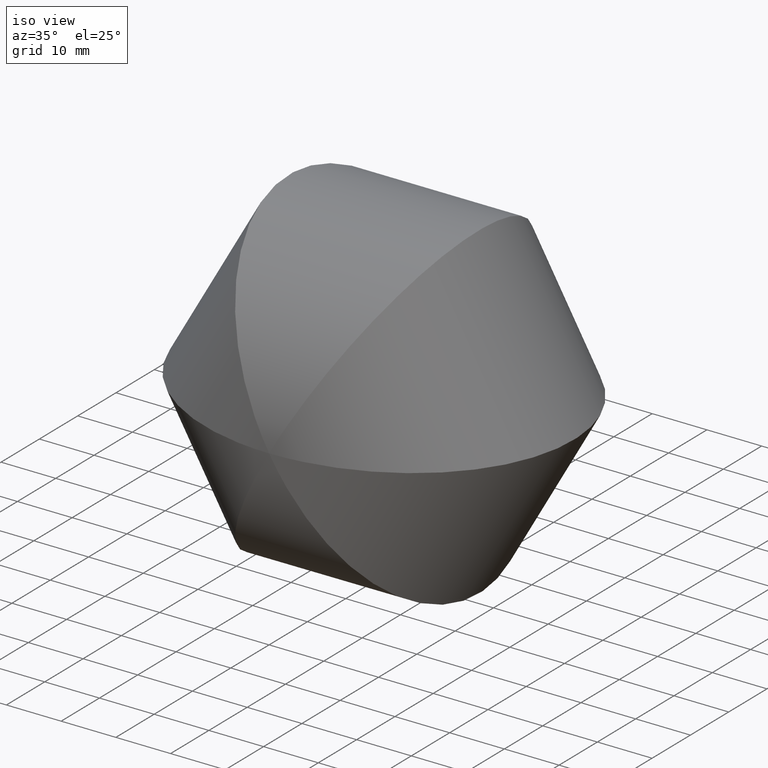
[diagram: clean part render]
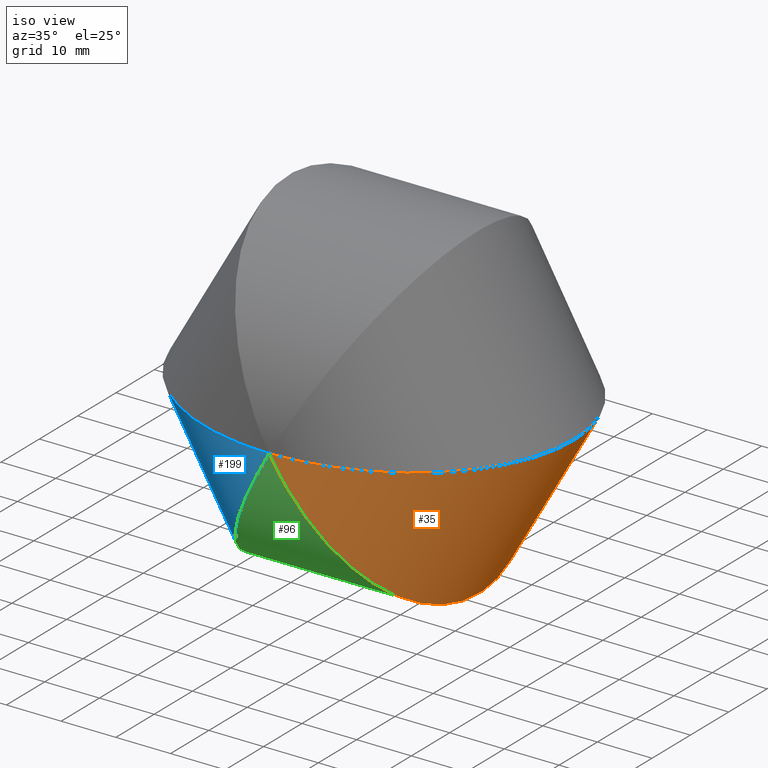
[diagram: same view with three faces highlighted in distinct colors, each labeled with its STEP entity id]
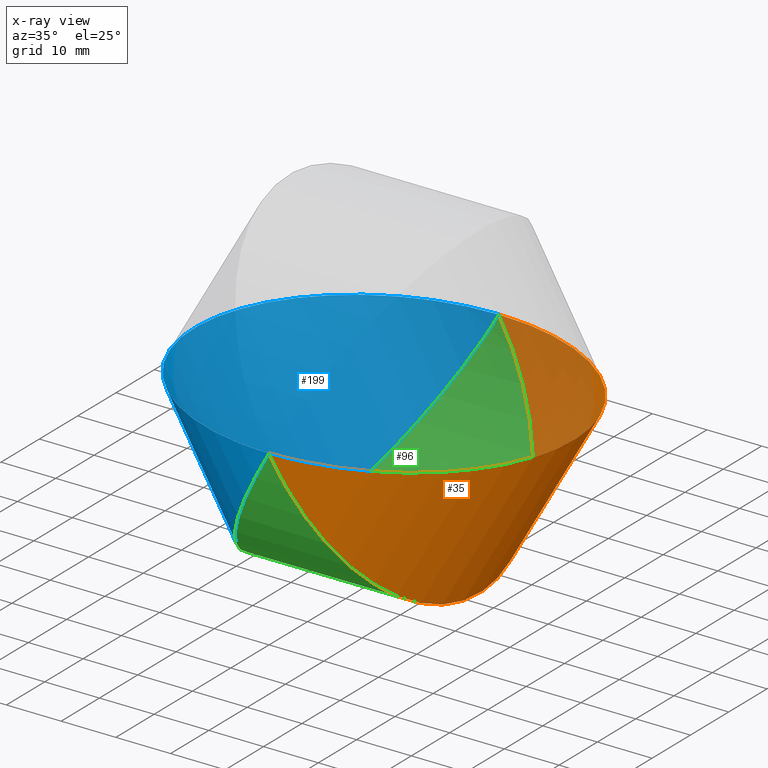
[diagram: x-ray of the same camera — body ghosted, the three highlighted faces saturated]
A machine part, iso view with three faces highlighted in distinct colors.
The next image is the same camera in x-ray (body ghosted, the three faces saturated) — at least one of them is partly hidden behind the body in this view.
Their STEP definitions:

[orange] entity #35 — the highlighted cylindrical surface (partial cylindrical patch) has radius 30 mm, axis along (0.5, -0, 0.866).
#13 = FACE_OUTER_BOUND ( 'NONE', #94, .T. ) ;
#18 = CARTESIAN_POINT ( 'NONE',  ( 6.938893903907228378E-15, -30.00000000000000000, 6.938893903907228378E-15 ) ) ;
#24 =( BOUNDED_CURVE ( )  B_SPLINE_CURVE ( 3, ( #114, #92, #113, #56 ),
 .UNSPECIFIED., .F., .T. ) 
 B_SPLINE_CURVE_WITH_KNOTS ( ( 4, 4 ),
 ( 4.712388980384689674, 7.853981633974482790 ),
 .UNSPECIFIED. ) 
 CURVE ( )  GEOMETRIC_REPRESENTATION_ITEM ( )  RATIONAL_B_SPLINE_CURVE ( ( 1.000000000000000000, 0.3333333333333333703, 0.3333333333333333703, 1.000000000000000000 ) ) 
 REPRESENTATION_ITEM ( '' )  );
#35 = ADVANCED_FACE ( 'NONE', ( #13 ), #257, .T. ) ;
#46 = ORIENTED_EDGE ( 'NONE', *, *, #248, .T. ) ;
#56 = CARTESIAN_POINT ( 'NONE',  ( 6.938893903907228378E-15, -30.00000000000000000, 6.938893903907228378E-15 ) ) ;
#76 = DIRECTION ( 'NONE',  ( 0.4999999999999980016, -1.530808498934197734E-16, 0.8660254037844398178 ) ) ;
#91 = EDGE_CURVE ( 'NONE', #149, #234, #24, .T. ) ;
#92 = CARTESIAN_POINT ( 'NONE',  ( 34.64101615137762735, 30.00000000000001421, -59.99999999999998579 ) ) ;
#94 = EDGE_LOOP ( 'NONE', ( #46, #171 ) ) ;
#95 = CARTESIAN_POINT ( 'NONE',  ( 0.000000000000000000, 0.000000000000000000, 0.000000000000000000 ) ) ;
#112 = DIRECTION ( 'NONE',  ( 0.8660254037844397068, 2.651438096812270369E-16, -0.4999999999999979461 ) ) ;
#113 = CARTESIAN_POINT ( 'NONE',  ( 34.64101615137762735, -29.99999999999998224, -60.00000000000000711 ) ) ;
#114 = CARTESIAN_POINT ( 'NONE',  ( -6.938893903907228378E-15, 30.00000000000000000, 0.000000000000000000 ) ) ;
#149 = VERTEX_POINT ( 'NONE', #236 ) ;
#161 = CARTESIAN_POINT ( 'NONE',  ( -6.938893903907228378E-15, 30.00000000000000000, 0.000000000000000000 ) ) ;
#162 = CARTESIAN_POINT ( 'NONE',  ( 6.938893903907228378E-15, -30.00000000000000000, 6.938893903907228378E-15 ) ) ;
#163 = CARTESIAN_POINT ( 'NONE',  ( 69.28203230275512681, -29.99999999999998224, 2.201497699787782325E-13 ) ) ;
#171 = ORIENTED_EDGE ( 'NONE', *, *, #91, .F. ) ;
#179 = CARTESIAN_POINT ( 'NONE',  ( 69.28203230275511260, 30.00000000000002842, 2.413612747532763403E-13 ) ) ;
#184 = AXIS2_PLACEMENT_3D ( 'NONE', #95, #76, #112 ) ;
#210 =( BOUNDED_CURVE ( )  B_SPLINE_CURVE ( 3, ( #161, #179, #163, #162 ),
 .UNSPECIFIED., .F., .T. ) 
 B_SPLINE_CURVE_WITH_KNOTS ( ( 4, 4 ),
 ( 4.712388980384689674, 7.853981633974482790 ),
 .UNSPECIFIED. ) 
 CURVE ( )  GEOMETRIC_REPRESENTATION_ITEM ( )  RATIONAL_B_SPLINE_CURVE ( ( 1.000000000000000000, 0.3333333333333333703, 0.3333333333333333703, 1.000000000000000000 ) ) 
 REPRESENTATION_ITEM ( '' )  );
#234 = VERTEX_POINT ( 'NONE', #18 ) ;
#236 = CARTESIAN_POINT ( 'NONE',  ( -6.938893903907228378E-15, 30.00000000000000000, 0.000000000000000000 ) ) ;
#248 = EDGE_CURVE ( 'NONE', #149, #234, #210, .T. ) ;
#257 = CYLINDRICAL_SURFACE ( 'NONE', #184, 30.00000000000000355 ) ;

[blue] entity #199 — the highlighted cylindrical surface (partial cylindrical patch) has radius 30 mm, axis along (-0.5, -0, 0.866).
#14 = CARTESIAN_POINT ( 'NONE',  ( -6.938893903907228378E-15, 30.00000000000000000, 0.000000000000000000 ) ) ;
#18 = CARTESIAN_POINT ( 'NONE',  ( 6.938893903907228378E-15, -30.00000000000000000, 6.938893903907228378E-15 ) ) ;
#38 = CARTESIAN_POINT ( 'NONE',  ( 6.938893903907228378E-15, -30.00000000000000000, 6.938893903907228378E-15 ) ) ;
#39 = DIRECTION ( 'NONE',  ( -0.5000000000000041078, -4.592425496802587777E-16, 0.8660254037844363761 ) ) ;
#48 = AXIS2_PLACEMENT_3D ( 'NONE', #216, #39, #176 ) ;
#59 = CARTESIAN_POINT ( 'NONE',  ( -34.64101615137732892, -30.00000000000001421, -60.00000000000000711 ) ) ;
#80 = CARTESIAN_POINT ( 'NONE',  ( -34.64101615137736445, 29.99999999999997158, -60.00000000000002842 ) ) ;
#89 = ORIENTED_EDGE ( 'NONE', *, *, #139, .F. ) ;
#118 = CYLINDRICAL_SURFACE ( 'NONE', #48, 30.00000000000000355 ) ;
#139 = EDGE_CURVE ( 'NONE', #149, #234, #240, .T. ) ;
#142 = CARTESIAN_POINT ( 'NONE',  ( -69.28203230275511260, -30.00000000000002487, -7.124282176929701152E-13 ) ) ;
#143 = CARTESIAN_POINT ( 'NONE',  ( -69.28203230275512681, 29.99999999999999289, -7.336397224674680462E-13 ) ) ;
#144 = ORIENTED_EDGE ( 'NONE', *, *, #157, .F. ) ;
#149 = VERTEX_POINT ( 'NONE', #236 ) ;
#157 = EDGE_CURVE ( 'NONE', #234, #149, #249, .T. ) ;
#160 = CARTESIAN_POINT ( 'NONE',  ( -6.938893903907228378E-15, 30.00000000000000000, 0.000000000000000000 ) ) ;
#176 = DIRECTION ( 'NONE',  ( 0.8660254037844362651, 2.651438096812260015E-16, 0.5000000000000039968 ) ) ;
#188 = EDGE_LOOP ( 'NONE', ( #89, #144 ) ) ;
#199 = ADVANCED_FACE ( 'NONE', ( #245 ), #118, .T. ) ;
#216 = CARTESIAN_POINT ( 'NONE',  ( -0.000000000000000000, 0.000000000000000000, 0.000000000000000000 ) ) ;
#234 = VERTEX_POINT ( 'NONE', #18 ) ;
#236 = CARTESIAN_POINT ( 'NONE',  ( -6.938893903907228378E-15, 30.00000000000000000, 0.000000000000000000 ) ) ;
#240 =( BOUNDED_CURVE ( )  B_SPLINE_CURVE ( 3, ( #14, #143, #142, #260 ),
 .UNSPECIFIED., .F., .T. ) 
 B_SPLINE_CURVE_WITH_KNOTS ( ( 4, 4 ),
 ( 4.712388980384689674, 7.853981633974482790 ),
 .UNSPECIFIED. ) 
 CURVE ( )  GEOMETRIC_REPRESENTATION_ITEM ( )  RATIONAL_B_SPLINE_CURVE ( ( 1.000000000000000000, 0.3333333333333333703, 0.3333333333333333703, 1.000000000000000000 ) ) 
 REPRESENTATION_ITEM ( '' )  );
#245 = FACE_OUTER_BOUND ( 'NONE', #188, .T. ) ;
#249 =( BOUNDED_CURVE ( )  B_SPLINE_CURVE ( 3, ( #38, #59, #80, #160 ),
 .UNSPECIFIED., .F., .T. ) 
 B_SPLINE_CURVE_WITH_KNOTS ( ( 4, 4 ),
 ( 1.570796326794895892, 4.712388980384688786 ),
 .UNSPECIFIED. ) 
 CURVE ( )  GEOMETRIC_REPRESENTATION_ITEM ( )  RATIONAL_B_SPLINE_CURVE ( ( 1.000000000000000000, 0.3333333333333333703, 0.3333333333333333703, 1.000000000000000000 ) ) 
 REPRESENTATION_ITEM ( '' )  );
#260 = CARTESIAN_POINT ( 'NONE',  ( 6.938893903907228378E-15, -30.00000000000000000, 6.938893903907228378E-15 ) ) ;

[green] entity #96 — the highlighted cylindrical surface (partial cylindrical patch) has radius 30 mm, axis along (1, 0, 0).
#18 = CARTESIAN_POINT ( 'NONE',  ( 6.938893903907228378E-15, -30.00000000000000000, 6.938893903907228378E-15 ) ) ;
#24 =( BOUNDED_CURVE ( )  B_SPLINE_CURVE ( 3, ( #114, #92, #113, #56 ),
 .UNSPECIFIED., .F., .T. ) 
 B_SPLINE_CURVE_WITH_KNOTS ( ( 4, 4 ),
 ( 4.712388980384689674, 7.853981633974482790 ),
 .UNSPECIFIED. ) 
 CURVE ( )  GEOMETRIC_REPRESENTATION_ITEM ( )  RATIONAL_B_SPLINE_CURVE ( ( 1.000000000000000000, 0.3333333333333333703, 0.3333333333333333703, 1.000000000000000000 ) ) 
 REPRESENTATION_ITEM ( '' )  );
#38 = CARTESIAN_POINT ( 'NONE',  ( 6.938893903907228378E-15, -30.00000000000000000, 6.938893903907228378E-15 ) ) ;
#56 = CARTESIAN_POINT ( 'NONE',  ( 6.938893903907228378E-15, -30.00000000000000000, 6.938893903907228378E-15 ) ) ;
#59 = CARTESIAN_POINT ( 'NONE',  ( -34.64101615137732892, -30.00000000000001421, -60.00000000000000711 ) ) ;
#60 = AXIS2_PLACEMENT_3D ( 'NONE', #97, #173, #197 ) ;
#80 = CARTESIAN_POINT ( 'NONE',  ( -34.64101615137736445, 29.99999999999997158, -60.00000000000002842 ) ) ;
#82 = CYLINDRICAL_SURFACE ( 'NONE', #60, 30.00000000000000000 ) ;
#91 = EDGE_CURVE ( 'NONE', #149, #234, #24, .T. ) ;
#92 = CARTESIAN_POINT ( 'NONE',  ( 34.64101615137762735, 30.00000000000001421, -59.99999999999998579 ) ) ;
#96 = ADVANCED_FACE ( 'NONE', ( #101 ), #82, .T. ) ;
#97 = CARTESIAN_POINT ( 'NONE',  ( 0.000000000000000000, 0.000000000000000000, 0.000000000000000000 ) ) ;
#101 = FACE_OUTER_BOUND ( 'NONE', #239, .T. ) ;
#113 = CARTESIAN_POINT ( 'NONE',  ( 34.64101615137762735, -29.99999999999998224, -60.00000000000000711 ) ) ;
#114 = CARTESIAN_POINT ( 'NONE',  ( -6.938893903907228378E-15, 30.00000000000000000, 0.000000000000000000 ) ) ;
#149 = VERTEX_POINT ( 'NONE', #236 ) ;
#155 = ORIENTED_EDGE ( 'NONE', *, *, #157, .T. ) ;
#157 = EDGE_CURVE ( 'NONE', #234, #149, #249, .T. ) ;
#160 = CARTESIAN_POINT ( 'NONE',  ( -6.938893903907228378E-15, 30.00000000000000000, 0.000000000000000000 ) ) ;
#167 = ORIENTED_EDGE ( 'NONE', *, *, #91, .T. ) ;
#173 = DIRECTION ( 'NONE',  ( 1.000000000000000000, 0.000000000000000000, 0.000000000000000000 ) ) ;
#197 = DIRECTION ( 'NONE',  ( 0.000000000000000000, 0.000000000000000000, -1.000000000000000000 ) ) ;
#234 = VERTEX_POINT ( 'NONE', #18 ) ;
#236 = CARTESIAN_POINT ( 'NONE',  ( -6.938893903907228378E-15, 30.00000000000000000, 0.000000000000000000 ) ) ;
#239 = EDGE_LOOP ( 'NONE', ( #155, #167 ) ) ;
#249 =( BOUNDED_CURVE ( )  B_SPLINE_CURVE ( 3, ( #38, #59, #80, #160 ),
 .UNSPECIFIED., .F., .T. ) 
 B_SPLINE_CURVE_WITH_KNOTS ( ( 4, 4 ),
 ( 1.570796326794895892, 4.712388980384688786 ),
 .UNSPECIFIED. ) 
 CURVE ( )  GEOMETRIC_REPRESENTATION_ITEM ( )  RATIONAL_B_SPLINE_CURVE ( ( 1.000000000000000000, 0.3333333333333333703, 0.3333333333333333703, 1.000000000000000000 ) ) 
 REPRESENTATION_ITEM ( '' )  );